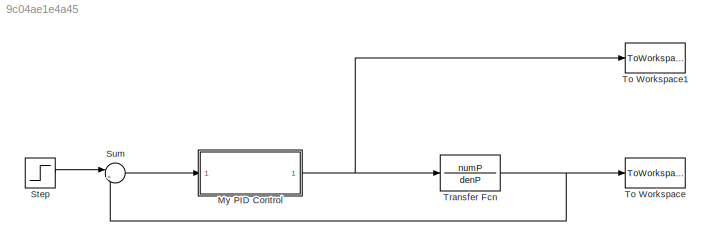
MODEL slx_9c04ae1e4a45
KIND model
CONFIG AbsTol = auto
CONFIG FixedStep = auto
CONFIG MaxStep = auto
CONFIG MinStep = auto
CONFIG RelTol = 1e-3
CONFIG SampleTimeConstraint = Unconstrained
CONFIG Solver = ode45
CONFIG SolverMode = Auto
CONFIG SolverName = ode45
CONFIG StartTime = 0.0
CONFIG StopTime = 10.0
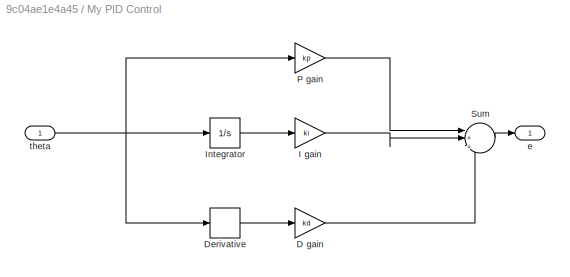
BLOCK [SubSystem] My PID Control
  Ports = [1, 1]
  RequestExecContextInheritance = off
  TreatAsAtomicUnit = on
BLOCK [Gain] My PID Control/D gain
  Gain = kd
  OutDataTypeStr = Inherit: Inherit via internal rule
  ParamDataTypeStr = Inherit: Inherit via internal rule
  SaturateOnIntegerOverflow = off
BLOCK [Derivative] My PID Control/Derivative
BLOCK [Gain] My PID Control/I gain
  Gain = ki
  OutDataTypeStr = Inherit: Inherit via internal rule
  ParamDataTypeStr = Inherit: Inherit via internal rule
  SaturateOnIntegerOverflow = off
BLOCK [Integrator] My PID Control/Integrator
  Ports = [1, 1]
BLOCK [Gain] My PID Control/P gain
  Gain = kp
  OutDataTypeStr = Inherit: Inherit via internal rule
  ParamDataTypeStr = Inherit: Inherit via internal rule
  SaturateOnIntegerOverflow = off
BLOCK [Sum] My PID Control/Sum
  IconShape = round
  InputSameDT = off
  Inputs = |+|+|+
  OutDataTypeStr = Inherit: Inherit via internal rule
  Ports = [3, 1]
  SaturateOnIntegerOverflow = off
BLOCK [Outport] My PID Control/e
  IconDisplay = Port number
BLOCK [Inport] My PID Control/theta
  IconDisplay = Port number
BLOCK [Step] Step
  After = theta_com
  SampleTime = 0
  Time = 0
BLOCK [Sum] Sum
  IconShape = round
  InputSameDT = off
  Inputs = |+-
  OutDataTypeStr = Inherit: Inherit via internal rule
  Ports = [2, 1]
  SaturateOnIntegerOverflow = off
BLOCK [ToWorkspace] To Workspace
  MaxDataPoints = inf
  Ports = [1]
  SampleTime = -1
  SaveFormat = Timeseries
  VariableName = theta
BLOCK [ToWorkspace] To Workspace1
  MaxDataPoints = inf
  Ports = [1]
  SampleTime = -1
  SaveFormat = Timeseries
  VariableName = elev
BLOCK [TransferFcn] Transfer Fcn
  Denominator = denP
  Numerator = numP
LINE My PID Control/D gain:1 -> My PID Control/Sum:3
LINE My PID Control/Derivative:1 -> My PID Control/D gain:1
LINE My PID Control/I gain:1 -> My PID Control/Sum:2
LINE My PID Control/Integrator:1 -> My PID Control/I gain:1
LINE My PID Control/P gain:1 -> My PID Control/Sum:1
LINE My PID Control/Sum:1 -> My PID Control/e:1
NET My PID Control/theta:1 -> My PID Control/Derivative:1, My PID Control/Integrator:1, My PID Control/P gain:1
NET My PID Control:1 -> To Workspace1:1, Transfer Fcn:1
LINE Step:1 -> Sum:1
LINE Sum:1 -> My PID Control:1
NET Transfer Fcn:1 -> Sum:2, To Workspace:1
note: NET lines group one-source signal fan-out (src -> all destinations, sorted); 1:1 wires keep LINE
